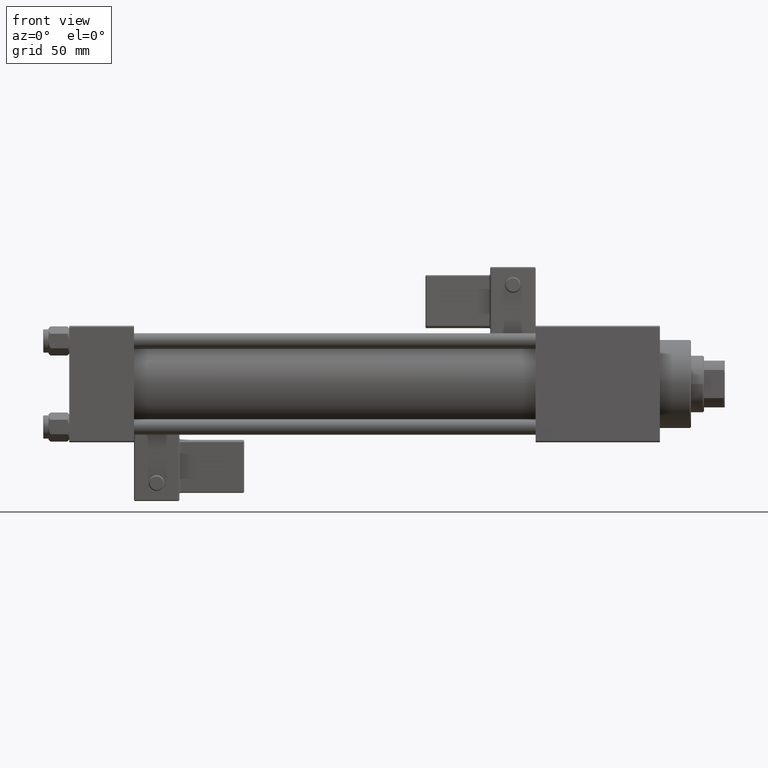
[diagram: clean part render]
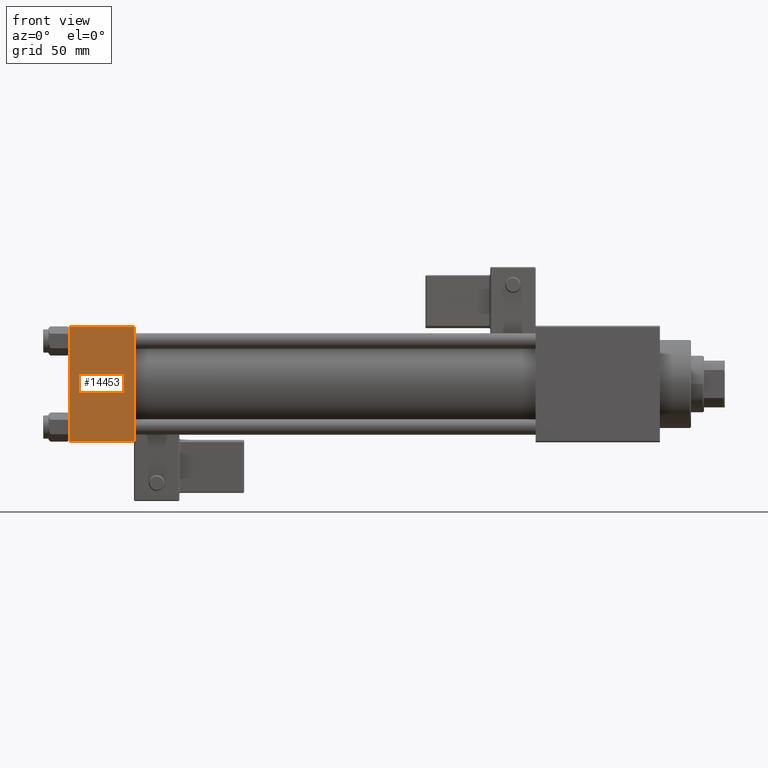
[diagram: same view with one face highlighted and labeled with its STEP entity id]
A machine part, front view. The second image highlights one B-rep face of the part: STEP entity #14453.
In plain terms, the highlighted planar face has unit normal (0, 1, 0).
Its self-contained STEP definition (entity closure, byte-faithful):
#123 = ORIENTED_EDGE ( 'NONE', *, *, #52666, .T. ) ;
#143 = CARTESIAN_POINT ( 'NONE',  ( 25.00000000000000000, -22.50000000000000000, 22.50000000000000000 ) ) ;
#2243 = ORIENTED_EDGE ( 'NONE', *, *, #4175, .F. ) ;
#4175 = EDGE_CURVE ( 'NONE', #4709, #34765, #23092, .T. ) ;
#4264 = CARTESIAN_POINT ( 'NONE',  ( 25.00000000000000000, -22.50000000000000000, 22.00000000000000000 ) ) ;
#4709 = VERTEX_POINT ( 'NONE', #37850 ) ;
#5111 = VECTOR ( 'NONE', #14408, 1000.000000000000000 ) ;
#7579 = LINE ( 'NONE', #40205, #48752 ) ;
#7664 = DIRECTION ( 'NONE',  ( 0.000000000000000000, 0.000000000000000000, -1.000000000000000000 ) ) ;
#9742 = EDGE_CURVE ( 'NONE', #4709, #40349, #24960, .T. ) ;
#10683 = LINE ( 'NONE', #28335, #43155 ) ;
#12420 = DIRECTION ( 'NONE',  ( 0.000000000000000000, -0.000000000000000000, 1.000000000000000000 ) ) ;
#13403 = EDGE_CURVE ( 'NONE', #15811, #34765, #7579, .T. ) ;
#14408 = DIRECTION ( 'NONE',  ( 0.000000000000000000, 0.000000000000000000, -1.000000000000000000 ) ) ;
#14453 = ADVANCED_FACE ( 'NONE', ( #50147 ), #20571, .F. ) ;
#15372 = ORIENTED_EDGE ( 'NONE', *, *, #9742, .T. ) ;
#15811 = VERTEX_POINT ( 'NONE', #45845 ) ;
#16394 = EDGE_LOOP ( 'NONE', ( #123, #23010, #2243, #15372 ) ) ;
#19306 = AXIS2_PLACEMENT_3D ( 'NONE', #143, #20839, #12420 ) ;
#20571 = PLANE ( 'NONE',  #19306 ) ;
#20839 = DIRECTION ( 'NONE',  ( -0.000000000000000000, 1.000000000000000000, 0.000000000000000000 ) ) ;
#23010 = ORIENTED_EDGE ( 'NONE', *, *, #13403, .T. ) ;
#23092 = LINE ( 'NONE', #51356, #5111 ) ;
#24960 = LINE ( 'NONE', #4264, #45167 ) ;
#28335 = CARTESIAN_POINT ( 'NONE',  ( 0.000000000000000000, -22.50000000000000000, 22.50000000000000000 ) ) ;
#32826 = CARTESIAN_POINT ( 'NONE',  ( 0.000000000000000000, -22.50000000000000000, 22.00000000000000000 ) ) ;
#34442 = DIRECTION ( 'NONE',  ( -1.000000000000000000, 0.000000000000000000, 0.000000000000000000 ) ) ;
#34765 = VERTEX_POINT ( 'NONE', #50509 ) ;
#36380 = DIRECTION ( 'NONE',  ( 1.000000000000000000, 0.000000000000000000, 0.000000000000000000 ) ) ;
#37850 = CARTESIAN_POINT ( 'NONE',  ( 25.00000000000000000, -22.50000000000000000, 22.00000000000000000 ) ) ;
#40205 = CARTESIAN_POINT ( 'NONE',  ( 25.00000000000000000, -22.50000000000000000, -21.99999999999998579 ) ) ;
#40349 = VERTEX_POINT ( 'NONE', #32826 ) ;
#43155 = VECTOR ( 'NONE', #7664, 1000.000000000000000 ) ;
#45167 = VECTOR ( 'NONE', #34442, 1000.000000000000000 ) ;
#45845 = CARTESIAN_POINT ( 'NONE',  ( 0.000000000000000000, -22.50000000000000000, -21.99999999999997158 ) ) ;
#48752 = VECTOR ( 'NONE', #36380, 1000.000000000000000 ) ;
#50147 = FACE_OUTER_BOUND ( 'NONE', #16394, .T. ) ;
#50509 = CARTESIAN_POINT ( 'NONE',  ( 25.00000000000000000, -22.50000000000000000, -21.99999999999997158 ) ) ;
#51356 = CARTESIAN_POINT ( 'NONE',  ( 25.00000000000000000, -22.50000000000000000, 22.50000000000000000 ) ) ;
#52666 = EDGE_CURVE ( 'NONE', #40349, #15811, #10683, .T. ) ;